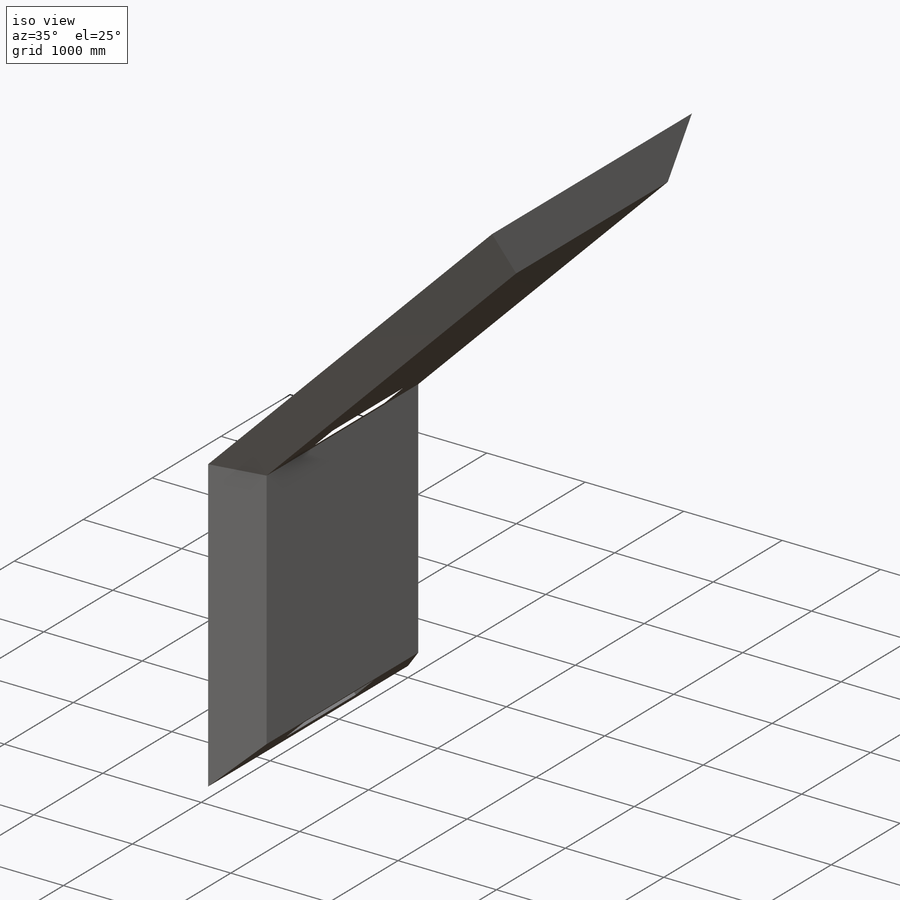
[diagram: iso view]
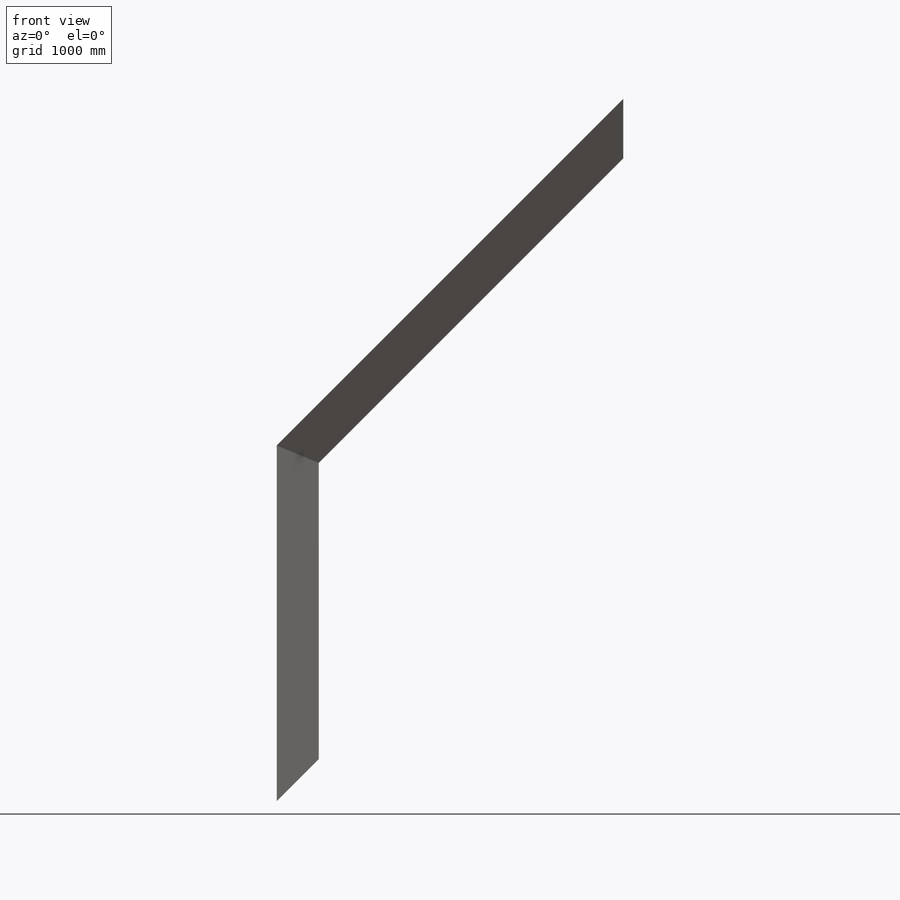
[diagram: front view]
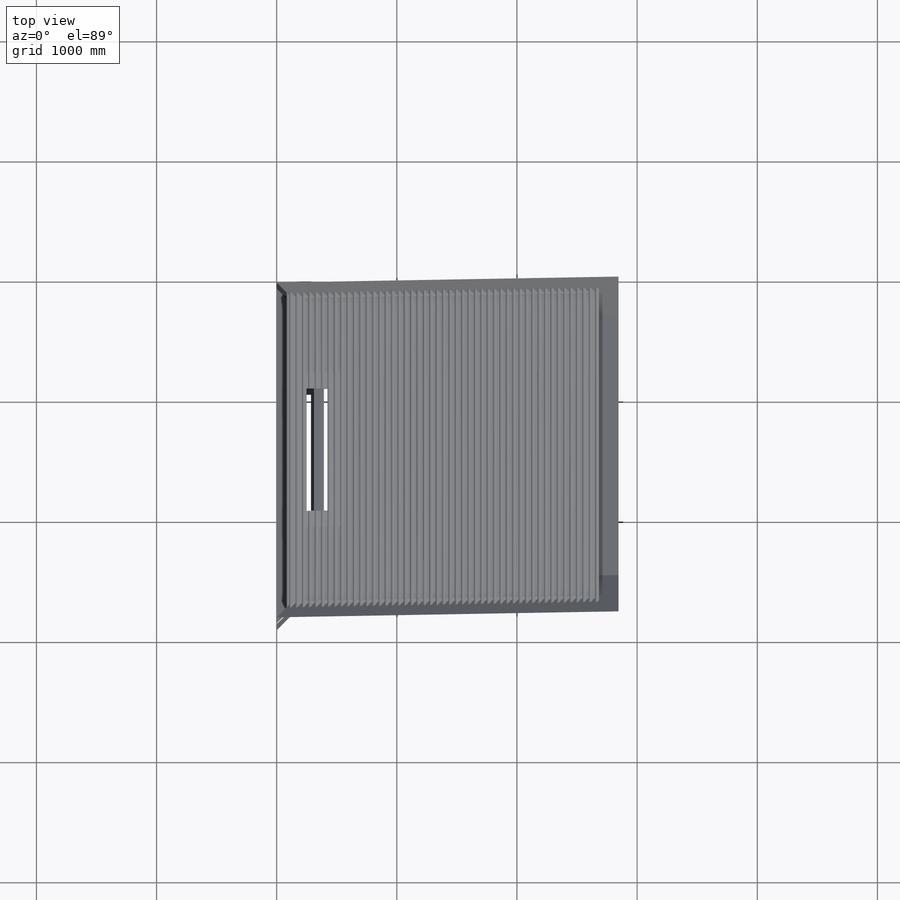
[diagram: top view]
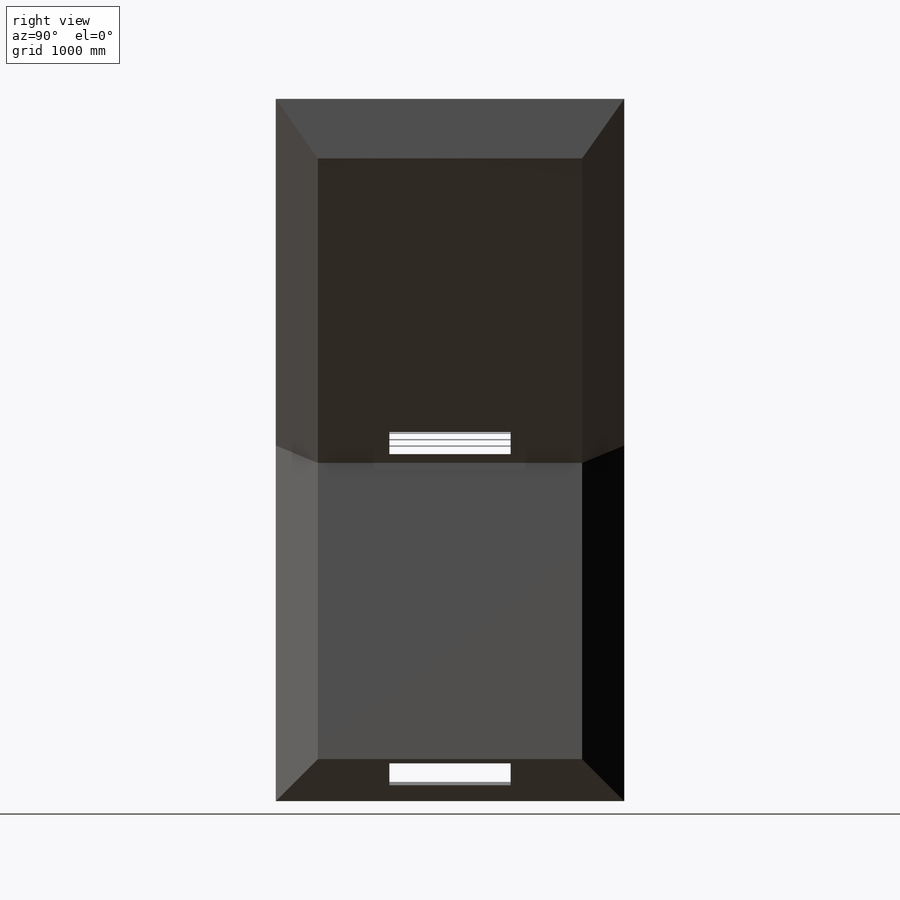
[diagram: right view]
SOLIDWORKS PART (.sldprt)
format: sldprt  version: not decoded by parser v0  size: 1,012,736 bytes
history: native  units: mm
features: sketch x14, plane x7, cut_extrude x6, extrude x5, material x1, shell x1 (+8 scaffold rows collapsed)
feature tree (42):
  scaffold x8  (default folders/planes/origin — collapsed)
  material  "Matériau <non spécifié>"
  plane  "Plan de face"
  plane  "Plan de dessus"
  plane  "Plan de droite"
  sketch  "Esquisse4"  dims[c1.D1=4080.0mm c1.D2=2960.0mm c1.D3=~3303.024622mm c2.D3=135.0deg c2.D5=350.0mm c3.D5=135.0deg c3.D6=~378.83727mm c3.D4=350.0mm]
  extrude  "Boss.-Extru.5"  Depth=2900mm
  extrude  "Boss.-Extru.6"  [1 undecoded]
  sketch  "Esquisse4<3>"  dims[D1=2900.0mm]
  plane  "Plan1"
  plane  "Plan5"
  sketch  "Esquisse24"  dims[c1.D1=350.0mm c1.D2=~519.830656mm c2.D1=350.0mm c2.D2=350.0mm]
  plane  "Plan6"
  sketch  "Esquisse25"  dims[D1=350.0mm D2=350.0mm D3=350.0mm D4=~494.974747mm]
  cut_extrude  "Enlèv. mat.-Extru.28"  [1 undecoded]
  cut_extrude  "Enlèv. mat.-Extru.30"  [1 undecoded]
  sketch  "Esquisse33"  dims[D1=~494.974747mm]
  cut_extrude  "Enlèv. mat.-Extru.32"  [1 undecoded]
  sketch  "Esquisse34"  dims[c1.D1=350.0mm c1.D2=~494.974747mm c2.D1=350.0mm c2.D2=350.0mm c2.D3=350.0mm c3.D1=350.0mm c3.D2=350.0mm c3.D3=~494.974747mm]
  cut_extrude  "Enlèv. mat.-Extru.34"  [1 undecoded]
  shell  "Coque1"  Thickness=40mm
  sketch  "Esquisse37"  dims[D1=50.0mm]
  cut_extrude  "Enlèv. mat.-Extru.36"  Depth=40mm
  plane  "Plan8"  Offset=1450mm
  sketch  "Esquisse39"  dims[D1=~359.157417mm]
  sketch  "Esquisse40"  dims[D1=~3173.495234mm]
  sketch  "Esquisse41"  dims[c1.D3=18.75mm c1.D4=18.75mm c1.D5=18.75mm c1.D6=18.75mm c2.D3=18.75mm c2.D4=18.75mm c2.D5=18.75mm c2.D6=18.75mm c3.D4=18.75mm c3.D5=18.75mm c3.D6=18.75mm c3.D1=3700.0mm c3.D3=~2.722683mm c4.D6=1781.25mm c4.D4=~541.555306mm c4.D2=100.0mm c4.D5=0.3mm c5.D6=10.0mm c5.D7=5.0mm]
  sketch  "Esquisse42"  dims[D1=100.0mm D2=1018.0mm D3=266.0mm D4=4.0mm]
  cut_extrude  "Enlèv. mat.-Extru.40"  [1 undecoded]
  sketch  "Esquisse44"  dims[D1=4.0mm]
  extrude  "Boss.-Extru.8"  Depth=270mm
  sketch  "Esquisse45"  dims[c1.D1=0.4mm c1.D2=4.0mm c1.D3=4.0mm c2.D1=0.0mm]
  extrude  "Boss.-Extru.9"  [1 undecoded]
  sketch  "Esquisse46"  dims[c1.D1=~98.550876mm c1.D2=4.0mm c2.D1=0.0mm]
  extrude  "Boss.-Extru.10"  [1 undecoded]
decode coverage: 18 of 26 modeling features carry decoded parameters
note: ~ marks probable driven/reference dimensions
note: 8 parameter values undecoded
summary: no parameter record found for 8 features
note: suppression state not decoded; provenance and decode notes live in map.json
